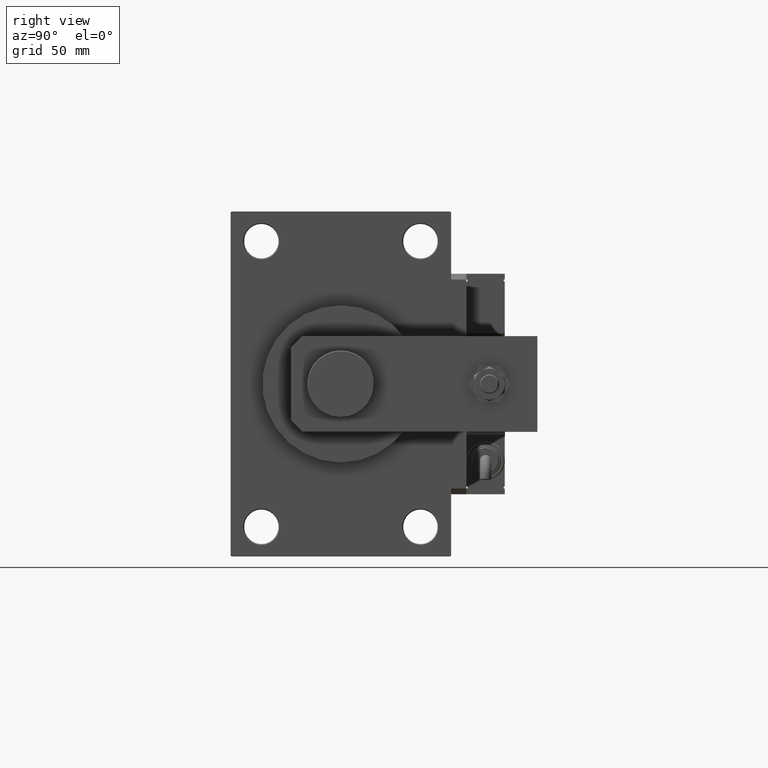
[diagram: clean part render]
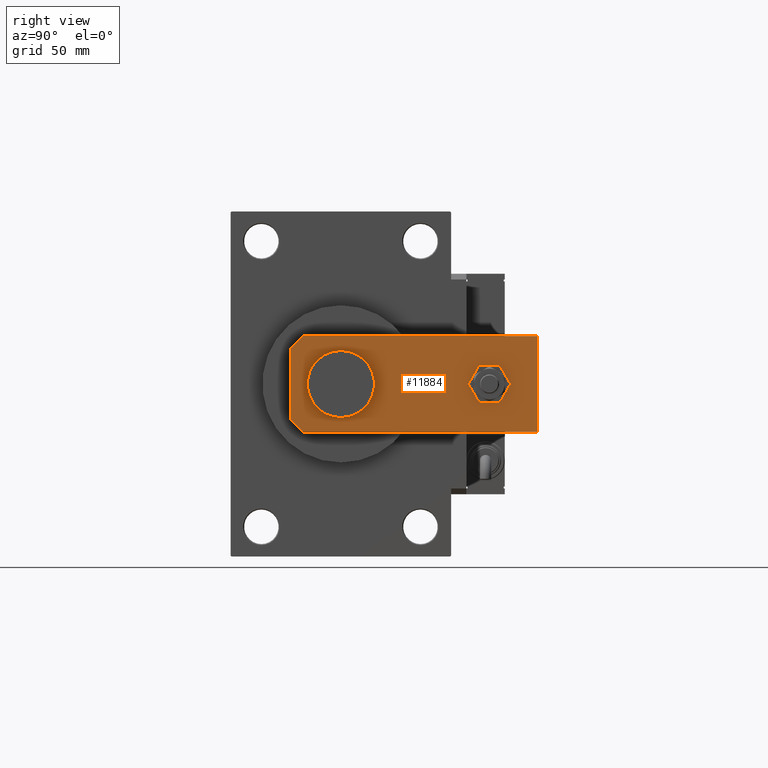
[diagram: same view with one face highlighted and labeled with its STEP entity id]
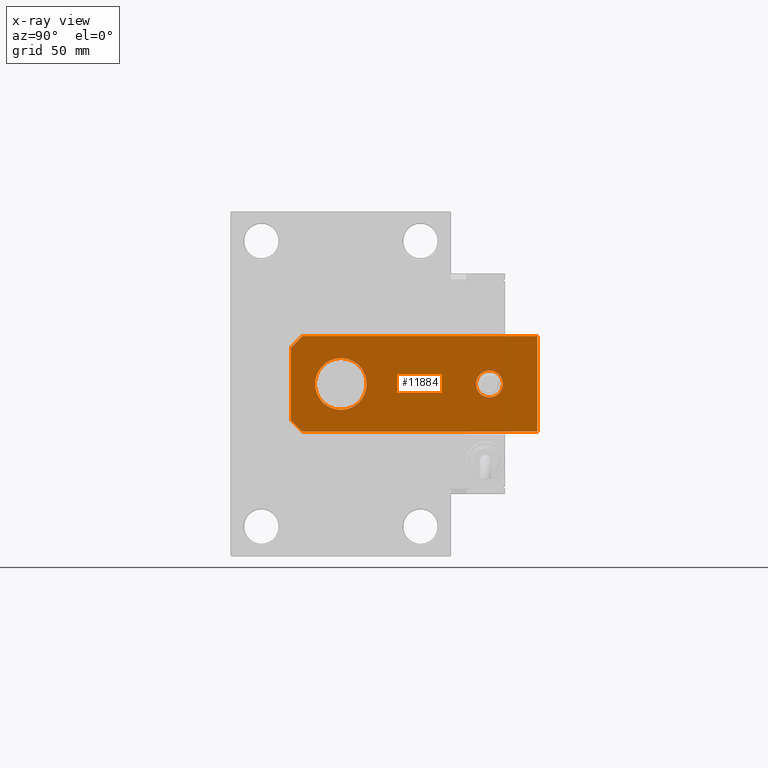
[diagram: x-ray of the same camera — body ghosted, the highlighted face saturated]
A machine part, right view. The second image highlights one B-rep face of the part: STEP entity #11884.
The next image is the same camera in x-ray: the body ghosted, the highlighted face saturated — about 0% of this face is hidden behind the body in this view.
In plain terms, the highlighted planar face has unit normal (-1, 0, 0).
Its self-contained STEP definition (entity closure, byte-faithful):
#917 = CARTESIAN_POINT ( 'NONE',  ( 7.000000000000004441, 103.5000000000000142, 0.000000000000000000 ) ) ;
#1015 = EDGE_LOOP ( 'NONE', ( #34444, #10191 ) ) ;
#1389 = LINE ( 'NONE', #17973, #14951 ) ;
#1678 = EDGE_CURVE ( 'NONE', #41565, #32866, #16168, .T. ) ;
#5892 = DIRECTION ( 'NONE',  ( -0.7071067811865459074, 0.7071067811865491270, -0.000000000000000000 ) ) ;
#6586 = EDGE_CURVE ( 'NONE', #51126, #21351, #36819, .T. ) ;
#6667 = VECTOR ( 'NONE', #37754, 1000.000000000000000 ) ;
#7173 = VECTOR ( 'NONE', #16691, 1000.000000000000000 ) ;
#7854 = DIRECTION ( 'NONE',  ( 1.000000000000000000, 0.000000000000000000, 0.000000000000000000 ) ) ;
#9116 = EDGE_CURVE ( 'NONE', #17239, #9640, #32574, .T. ) ;
#9375 = CARTESIAN_POINT ( 'NONE',  ( 25.00000000000000355, 128.5000000000000000, 0.000000000000000000 ) ) ;
#9640 = VERTEX_POINT ( 'NONE', #36912 ) ;
#10191 = ORIENTED_EDGE ( 'NONE', *, *, #13138, .T. ) ;
#10773 = CARTESIAN_POINT ( 'NONE',  ( 18.99999999999996803, 0.000000000000000000, 0.000000000000000000 ) ) ;
#11884 = ADVANCED_FACE ( 'NONE', ( #23374, #40537, #52283 ), #52007, .F. ) ;
#12698 = LINE ( 'NONE', #12966, #6667 ) ;
#12878 = CARTESIAN_POINT ( 'NONE',  ( -25.00000000000001421, 0.000000000000000000, 0.000000000000000000 ) ) ;
#12966 = CARTESIAN_POINT ( 'NONE',  ( -25.00000000000000000, 128.5000000000000000, 0.000000000000000000 ) ) ;
#13138 = EDGE_CURVE ( 'NONE', #21351, #51126, #37087, .T. ) ;
#13703 = ORIENTED_EDGE ( 'NONE', *, *, #1678, .F. ) ;
#14951 = VECTOR ( 'NONE', #47141, 1000.000000000000000 ) ;
#15911 = VECTOR ( 'NONE', #23986, 1000.000000000000000 ) ;
#16168 = LINE ( 'NONE', #12878, #7173 ) ;
#16604 = CARTESIAN_POINT ( 'NONE',  ( -13.50000000000000000, 26.00000000000001066, 0.000000000000000000 ) ) ;
#16691 = DIRECTION ( 'NONE',  ( 1.000000000000000000, 0.000000000000000000, 0.000000000000000000 ) ) ;
#16914 = AXIS2_PLACEMENT_3D ( 'NONE', #47132, #18233, #51471 ) ;
#17239 = VERTEX_POINT ( 'NONE', #917 ) ;
#17966 = CARTESIAN_POINT ( 'NONE',  ( -25.00000000000000000, 128.5000000000000000, 0.000000000000000000 ) ) ;
#17973 = CARTESIAN_POINT ( 'NONE',  ( 25.00000000000000355, 128.5000000000000000, 0.000000000000000000 ) ) ;
#18233 = DIRECTION ( 'NONE',  ( 0.000000000000000000, 0.000000000000000000, 1.000000000000000000 ) ) ;
#18669 = CARTESIAN_POINT ( 'NONE',  ( -18.99999999999999645, 0.000000000000000000, 0.000000000000000000 ) ) ;
#19513 = CARTESIAN_POINT ( 'NONE',  ( 0.000000000000000000, 26.00000000000001066, 0.000000000000000000 ) ) ;
#19642 = VERTEX_POINT ( 'NONE', #45076 ) ;
#19765 = EDGE_LOOP ( 'NONE', ( #13703, #27170, #49625, #31857, #29316, #24154 ) ) ;
#19958 = DIRECTION ( 'NONE',  ( 1.000000000000000000, 0.000000000000000000, 0.000000000000000000 ) ) ;
#21351 = VERTEX_POINT ( 'NONE', #37439 ) ;
#22274 = AXIS2_PLACEMENT_3D ( 'NONE', #31302, #35385, #28269 ) ;
#23374 = FACE_OUTER_BOUND ( 'NONE', #19765, .T. ) ;
#23466 = VECTOR ( 'NONE', #53048, 1000.000000000000114 ) ;
#23986 = DIRECTION ( 'NONE',  ( -8.099876152420888730E-17, 1.000000000000000000, 0.000000000000000000 ) ) ;
#24154 = ORIENTED_EDGE ( 'NONE', *, *, #48240, .T. ) ;
#24166 = DIRECTION ( 'NONE',  ( 0.000000000000000000, 0.000000000000000000, 1.000000000000000000 ) ) ;
#26571 = LINE ( 'NONE', #18669, #50320 ) ;
#27170 = ORIENTED_EDGE ( 'NONE', *, *, #44260, .T. ) ;
#28269 = DIRECTION ( 'NONE',  ( 1.000000000000000000, 0.000000000000000000, 0.000000000000000000 ) ) ;
#28586 = VERTEX_POINT ( 'NONE', #17966 ) ;
#28830 = EDGE_CURVE ( 'NONE', #9640, #17239, #34021, .T. ) ;
#29316 = ORIENTED_EDGE ( 'NONE', *, *, #35360, .F. ) ;
#29452 = EDGE_CURVE ( 'NONE', #47455, #28586, #1389, .T. ) ;
#30115 = CARTESIAN_POINT ( 'NONE',  ( -18.99999999999999645, 0.000000000000000000, 0.000000000000000000 ) ) ;
#31302 = CARTESIAN_POINT ( 'NONE',  ( 0.000000000000000000, 0.000000000000000000, 0.000000000000000000 ) ) ;
#31857 = ORIENTED_EDGE ( 'NONE', *, *, #29452, .F. ) ;
#31915 = CARTESIAN_POINT ( 'NONE',  ( 25.00000000000001421, 0.000000000000000000, 0.000000000000000000 ) ) ;
#32574 = CIRCLE ( 'NONE', #16914, 7.000000000000004441 ) ;
#32866 = VERTEX_POINT ( 'NONE', #10773 ) ;
#34021 = CIRCLE ( 'NONE', #40106, 7.000000000000004441 ) ;
#34212 = AXIS2_PLACEMENT_3D ( 'NONE', #36318, #40666, #19958 ) ;
#34444 = ORIENTED_EDGE ( 'NONE', *, *, #6586, .T. ) ;
#35360 = EDGE_CURVE ( 'NONE', #19642, #47455, #48549, .T. ) ;
#35385 = DIRECTION ( 'NONE',  ( -0.000000000000000000, 0.000000000000000000, 1.000000000000000000 ) ) ;
#35890 = EDGE_LOOP ( 'NONE', ( #47956, #38400 ) ) ;
#36134 = DIRECTION ( 'NONE',  ( 0.000000000000000000, 0.000000000000000000, 1.000000000000000000 ) ) ;
#36318 = CARTESIAN_POINT ( 'NONE',  ( 0.000000000000000000, 26.00000000000001066, 0.000000000000000000 ) ) ;
#36819 = CIRCLE ( 'NONE', #34212, 13.50000000000000000 ) ;
#36912 = CARTESIAN_POINT ( 'NONE',  ( -7.000000000000004441, 103.5000000000000142, 0.000000000000000000 ) ) ;
#36954 = LINE ( 'NONE', #41036, #23466 ) ;
#37087 = CIRCLE ( 'NONE', #50155, 13.50000000000000000 ) ;
#37439 = CARTESIAN_POINT ( 'NONE',  ( 13.50000000000000000, 26.00000000000001066, 0.000000000000000000 ) ) ;
#37754 = DIRECTION ( 'NONE',  ( -1.079983486989451872E-16, -1.000000000000000000, 0.000000000000000000 ) ) ;
#38400 = ORIENTED_EDGE ( 'NONE', *, *, #9116, .T. ) ;
#40106 = AXIS2_PLACEMENT_3D ( 'NONE', #44361, #24166, #7854 ) ;
#40537 = FACE_BOUND ( 'NONE', #35890, .T. ) ;
#40666 = DIRECTION ( 'NONE',  ( 0.000000000000000000, 0.000000000000000000, 1.000000000000000000 ) ) ;
#41036 = CARTESIAN_POINT ( 'NONE',  ( 25.00000000000001421, 6.000000000000019540, 0.000000000000000000 ) ) ;
#41565 = VERTEX_POINT ( 'NONE', #30115 ) ;
#42267 = EDGE_CURVE ( 'NONE', #28586, #50622, #12698, .T. ) ;
#43670 = CARTESIAN_POINT ( 'NONE',  ( -25.00000000000001421, 6.000000000000047073, 0.000000000000000000 ) ) ;
#44260 = EDGE_CURVE ( 'NONE', #41565, #50622, #26571, .T. ) ;
#44361 = CARTESIAN_POINT ( 'NONE',  ( 2.336634443525536587E-16, 103.5000000000000142, 0.000000000000000000 ) ) ;
#45076 = CARTESIAN_POINT ( 'NONE',  ( 25.00000000000001421, 6.000000000000018652, 0.000000000000000000 ) ) ;
#47132 = CARTESIAN_POINT ( 'NONE',  ( 2.336634443525536587E-16, 103.5000000000000142, 0.000000000000000000 ) ) ;
#47141 = DIRECTION ( 'NONE',  ( -1.000000000000000000, 0.000000000000000000, 0.000000000000000000 ) ) ;
#47455 = VERTEX_POINT ( 'NONE', #9375 ) ;
#47956 = ORIENTED_EDGE ( 'NONE', *, *, #28830, .T. ) ;
#48240 = EDGE_CURVE ( 'NONE', #19642, #32866, #36954, .T. ) ;
#48549 = LINE ( 'NONE', #31915, #15911 ) ;
#49625 = ORIENTED_EDGE ( 'NONE', *, *, #42267, .F. ) ;
#50155 = AXIS2_PLACEMENT_3D ( 'NONE', #19513, #36134, #52760 ) ;
#50320 = VECTOR ( 'NONE', #5892, 1000.000000000000114 ) ;
#50622 = VERTEX_POINT ( 'NONE', #43670 ) ;
#51126 = VERTEX_POINT ( 'NONE', #16604 ) ;
#51471 = DIRECTION ( 'NONE',  ( 1.000000000000000000, 0.000000000000000000, 0.000000000000000000 ) ) ;
#52007 = PLANE ( 'NONE',  #22274 ) ;
#52283 = FACE_BOUND ( 'NONE', #1015, .T. ) ;
#52760 = DIRECTION ( 'NONE',  ( 1.000000000000000000, 0.000000000000000000, 0.000000000000000000 ) ) ;
#53048 = DIRECTION ( 'NONE',  ( -0.7071067811865491270, -0.7071067811865459074, -0.000000000000000000 ) ) ;